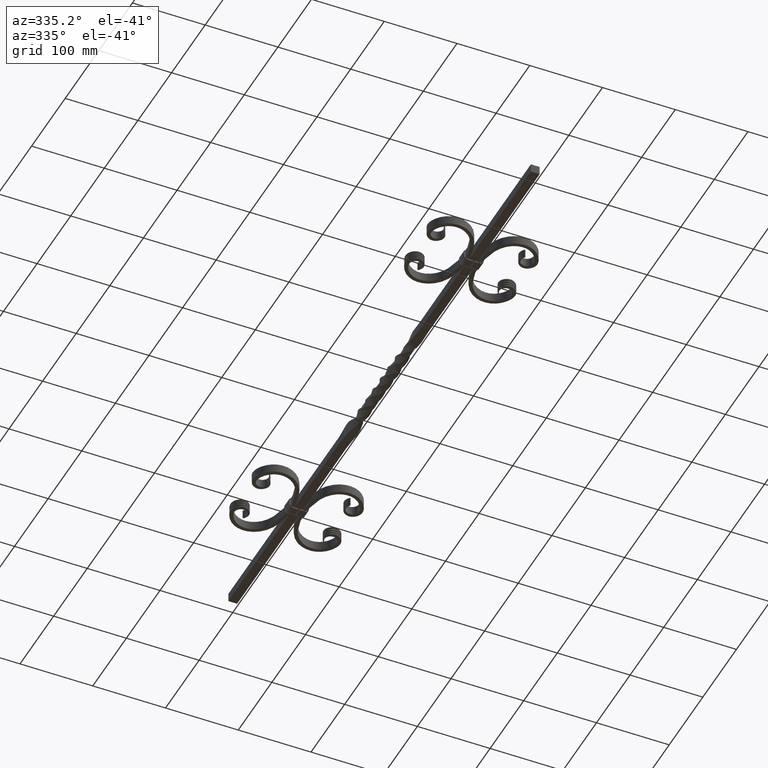
[diagram: clean part render]
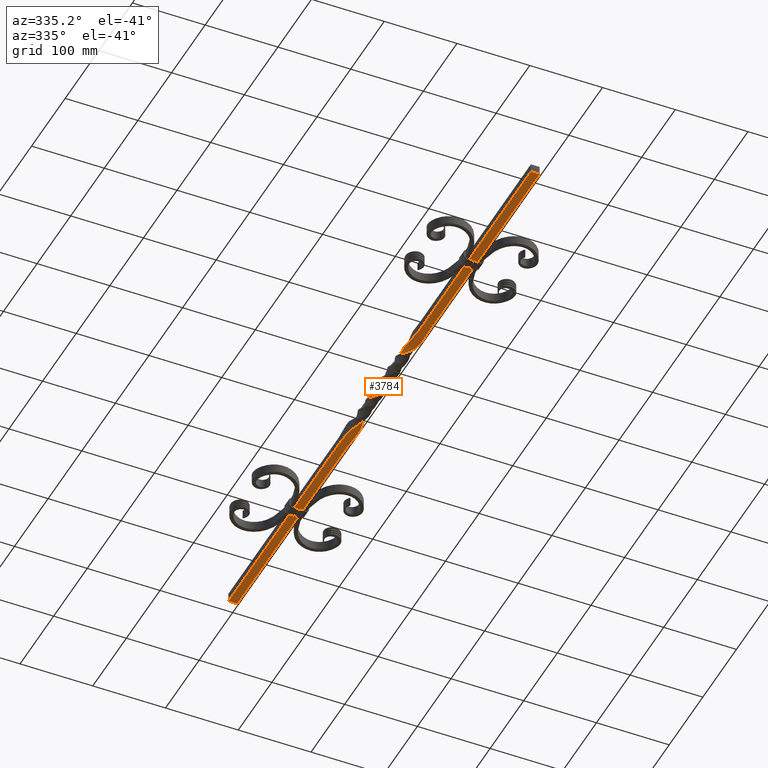
[diagram: same view with one face highlighted and labeled with its STEP entity id]
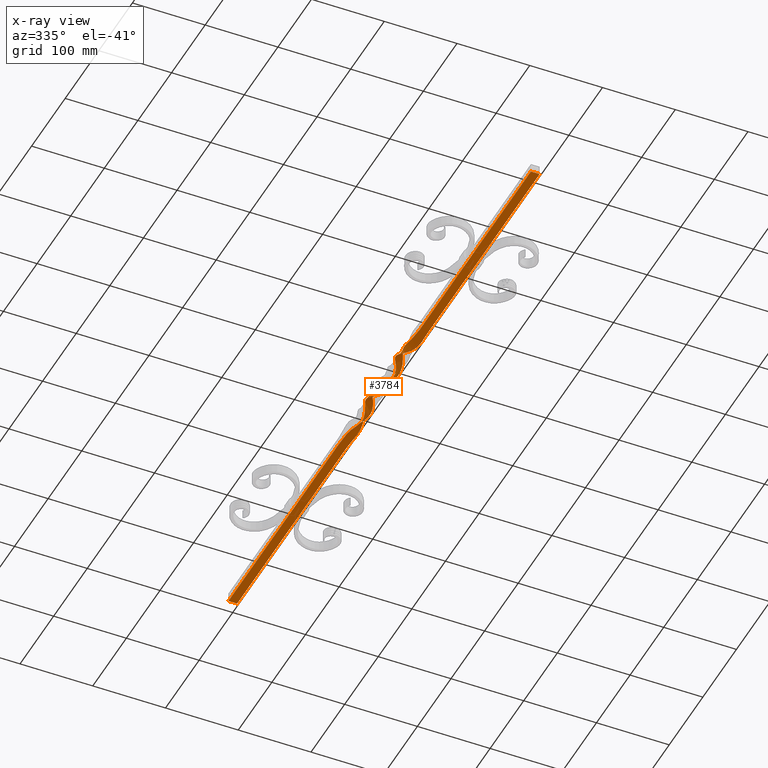
[diagram: x-ray of the same camera — body ghosted, the highlighted face saturated]
A machine part, auxiliary view. The second image highlights one B-rep face of the part: STEP entity #3784.
The next image is the same camera in x-ray: the body ghosted, the highlighted face saturated — about 0% of this face is hidden behind the body in this view.
In plain terms, the highlighted face is a freeform B-spline surface patch.
Its self-contained STEP definition (entity closure, byte-faithful):
#216 = CARTESIAN_POINT ( 'NONE',  ( 6.003784774164357074, 253.1271834178583333, -6.020221256834648038 ) ) ;
#286 = EDGE_CURVE ( 'NONE', #3244, #4060, #6926, .T. ) ;
#438 = DIRECTION ( 'NONE',  ( 1.000000000000000000, -8.326672684688670267E-14, -2.168404344971007882E-16 ) ) ;
#593 = CARTESIAN_POINT ( 'NONE',  ( 6.020221256834648926, 646.8728165821406719, -6.003784774164356186 ) ) ;
#600 = CARTESIAN_POINT ( 'NONE',  ( -6.000000218979613109, 65.62500002364450324, -6.000000040986010141 ) ) ;
#675 = CARTESIAN_POINT ( 'NONE',  ( -6.003784774164359739, 646.8728165821406719, -6.020221256834650703 ) ) ;
#771 = B_SPLINE_SURFACE_WITH_KNOTS ( 'NONE', 3, 3, ( 
 ( #12953, #4282, #16314, #16464, #5994, #14457, #6147, #4358, #11214, #16171, #19660, #11059, #2463, #7808, #19733, #7873, #19888, #18072, #9544, #2695, #19964, #5848, #17914 ),
 ( #1324, #8019, #20331, #14984, #13107, #21746, #4656, #4585, #11669, #20263, #18442, #9850, #1173, #8162, #18369, #16614, #2917, #8098, #18289, #10005, #2844, #16693, #9923 ),
 ( #11598, #22055, #13330, #20182, #2770, #20035, #21980, #11445, #1245, #9773, #13261, #13402, #3064, #11521, #14837, #15126, #9695, #4505, #16540, #6367, #14913, #1018, #21825 ),
 ( #21898, #6225, #7950, #1096, #13182, #2999, #6291, #4795, #15051, #20111, #4725, #16768, #6440, #8239, #18518, #16841, #6513, #18597, #17210, #13477, #8387, #10357, #20551 ) ),
 .UNSPECIFIED., .F., .F., .F.,
 ( 4, 4 ),
 ( 4, 1, 1, 1, 1, 1, 1, 1, 1, 1, 1, 1, 1, 1, 1, 1, 1, 1, 1, 1, 4 ),
 ( 0.000000000000000000, 1.000000000000000000 ),
 ( 0.000000000000000000, 0.2150539006143588061, 0.2457758864164100443, 0.2764978722184612825, 0.3072198580205126039, 0.3379418438225638699, 0.3687168302277790133, 0.4004128416727371076, 0.4330298781574383749, 0.4665149390787190486, 0.4999999999999996114, 0.5334850609212802297, 0.5669701218425607925, 0.5995871583272621708, 0.6312831697722204316, 0.6620581561774356860, 0.6927801419794871185, 0.7235021277815384400, 0.7542241135835897614, 0.7849460993856408608, 1.000000000000000000 ),
 .UNSPECIFIED. ) ;
#904 = CARTESIAN_POINT ( 'NONE',  ( 16.02030561610881776, 506.1977098420063044, -0.9457429766344983557 ) ) ;
#1018 = CARTESIAN_POINT ( 'NONE',  ( -1.999999954330808905, 834.3749999763623464, -6.000000159648402054 ) ) ;
#1096 = CARTESIAN_POINT ( 'NONE',  ( -5.994581729899902456, 224.9994149548763005, -5.998985872695348220 ) ) ;
#1173 = CARTESIAN_POINT ( 'NONE',  ( -11.92570182127426826, 478.0767954600217990, 0.8538160824198446353 ) ) ;
#1245 = CARTESIAN_POINT ( 'NONE',  ( -4.529577538281730043, 367.2982682768879386, -7.917712261078325930 ) ) ;
#1324 = CARTESIAN_POINT ( 'NONE',  ( 1.999999999999998224, 0.000000000000000000, -6.000000000000003553 ) ) ;
#1613 = FACE_OUTER_BOUND ( 'NONE', #16577, .T. ) ;
#1817 = CARTESIAN_POINT ( 'NONE',  ( 0.9457429766345005762, 506.1977098420063044, 16.02030561610880710 ) ) ;
#1940 = EDGE_CURVE ( 'NONE', #4060, #19491, #8209, .T. ) ;
#2343 = CARTESIAN_POINT ( 'NONE',  ( -14.82313183498101061, 478.0767954600213443, -6.130841793860736466 ) ) ;
#2350 = CARTESIAN_POINT ( 'NONE',  ( -6.000000000000000000, 0.000000000000000000, -6.000000000000000000 ) ) ;
#2396 = CARTESIAN_POINT ( 'NONE',  ( -3.469446951953614189E-15, 899.9999999999998863, -6.000000000000000000 ) ) ;
#2419 = CARTESIAN_POINT ( 'NONE',  ( 5.994581729899895350, 675.0005850451231026, -5.998985872695351773 ) ) ;
#2463 = CARTESIAN_POINT ( 'NONE',  ( -14.82313183498101061, 478.0767954600213443, -6.130841793860736466 ) ) ;
#2576 = CARTESIAN_POINT ( 'NONE',  ( -6.000000000000003553, 899.9999999999998863, -6.000000000000000000 ) ) ;
#2639 = CARTESIAN_POINT ( 'NONE',  ( -3.469446951953614189E-15, 0.000000000000000000, -6.000000000000000000 ) ) ;
#2659 = CARTESIAN_POINT ( 'NONE',  ( -6.281851131885397344, 309.4216067163823709, -6.052753540043469549 ) ) ;
#2695 = CARTESIAN_POINT ( 'NONE',  ( 5.994581729899895350, 675.0005850451231026, -5.998985872695351773 ) ) ;
#2770 = CARTESIAN_POINT ( 'NONE',  ( -2.012219246501647962, 253.1271834178585607, -6.009263601721122505 ) ) ;
#2844 = CARTESIAN_POINT ( 'NONE',  ( 2.009180187340980694, 759.3733596218493176, -6.006959643480523248 ) ) ;
#2917 = CARTESIAN_POINT ( 'NONE',  ( 2.170316241242496780, 590.5783932836166059, -6.129119403990755721 ) ) ;
#2999 = CARTESIAN_POINT ( 'NONE',  ( -5.924533242761513385, 281.2418513736877230, -5.985875030647205719 ) ) ;
#3064 = CARTESIAN_POINT ( 'NONE',  ( -9.028271807567502805, 478.0767954600212306, 7.838473958700433286 ) ) ;
#3119 = B_SPLINE_CURVE_WITH_KNOTS ( 'NONE', 3,
 ( #2576, #12989, #7692, #12838, #675, #6108, #7842, #9196, #14418, #904, #14644, #9429, #19767, #4170, #11093, #9272, #2659, #21482, #5884, #17949, #4392, #600, #2350 ),
 .UNSPECIFIED., .F., .F.,
 ( 4, 1, 1, 1, 1, 1, 1, 1, 1, 1, 1, 1, 1, 1, 1, 1, 1, 1, 1, 1, 4 ),
 ( 0.000000000000000000, 0.2150539006143591392, 0.2457758864164102386, 0.2764978722184615600, 0.3072198580205128815, 0.3379418438225643140, 0.3687168302277795684, 0.4004128416727378292, 0.4330298781574392075, 0.4665149390787197703, 0.5000000000000004441, 0.5334850609212808958, 0.5669701218425615696, 0.5995871583272629479, 0.6312831697722209867, 0.6620581561774361301, 0.6927801419794874516, 0.7235021277815387730, 0.7542241135835899835, 0.7849460993856411939, 1.000000000000000000 ),
 .UNSPECIFIED. ) ;
#3244 = VERTEX_POINT ( 'NONE', #20573 ) ;
#3784 = ADVANCED_FACE ( 'NONE', ( #1613 ), #771, .T. ) ;
#3943 = ORIENTED_EDGE ( 'NONE', *, *, #1940, .T. ) ;
#4060 = VERTEX_POINT ( 'NONE', #5525 ) ;
#4170 = CARTESIAN_POINT ( 'NONE',  ( -0.9457429766359252143, 393.8022901579925588, 16.02030561610886039 ) ) ;
#4282 = CARTESIAN_POINT ( 'NONE',  ( 6.000000040985989713, 65.62500002364450324, -6.000000218979623767 ) ) ;
#4358 = CARTESIAN_POINT ( 'NONE',  ( 5.800247441439061014, 337.7143404507785363, -4.932763854690909611 ) ) ;
#4392 = CARTESIAN_POINT ( 'NONE',  ( -6.015192010897480124, 140.6266403781508245, -6.002843459772042145 ) ) ;
#4505 = CARTESIAN_POINT ( 'NONE',  ( -2.015738939510986150, 618.7581486263111401, -5.944980505390067727 ) ) ;
#4585 = CARTESIAN_POINT ( 'NONE',  ( 2.222577009395736880, 337.7143404507792184, -5.221925050273629410 ) ) ;
#4656 = CARTESIAN_POINT ( 'NONE',  ( 1.941218649400515694, 309.4216067163825983, -6.205485267938089855 ) ) ;
#4725 = CARTESIAN_POINT ( 'NONE',  ( 14.82313183498177622, 421.9232045399774051, -6.130841793859734601 ) ) ;
#4795 = CARTESIAN_POINT ( 'NONE',  ( -4.932763854690913163, 337.7143404507785363, -5.800247441439064566 ) ) ;
#5347 = CARTESIAN_POINT ( 'NONE',  ( 6.000000218979615774, 834.3749999763547294, -6.000000040986001260 ) ) ;
#5525 = CARTESIAN_POINT ( 'NONE',  ( 5.999999999999994671, 899.9999999999996589, -6.000000000000000000 ) ) ;
#5848 = CARTESIAN_POINT ( 'NONE',  ( 6.000000218979615774, 834.3749999763547294, -6.000000040986001260 ) ) ;
#5884 = CARTESIAN_POINT ( 'NONE',  ( -6.020221256834651591, 253.1271834178583333, -6.003784774164361515 ) ) ;
#5994 = CARTESIAN_POINT ( 'NONE',  ( 6.003784774164357074, 253.1271834178583333, -6.020221256834648038 ) ) ;
#6108 = CARTESIAN_POINT ( 'NONE',  ( -5.985875030647226147, 618.7581486263111401, -5.924533242761492069 ) ) ;
#6147 = CARTESIAN_POINT ( 'NONE',  ( 6.052753540043465996, 309.4216067163823709, -6.281851131885392014 ) ) ;
#6225 = CARTESIAN_POINT ( 'NONE',  ( -6.000000218979613109, 65.62500002364450324, -6.000000040986010141 ) ) ;
#6291 = CARTESIAN_POINT ( 'NONE',  ( -6.281851131885397344, 309.4216067163823709, -6.052753540043469549 ) ) ;
#6367 = CARTESIAN_POINT ( 'NONE',  ( -2.001130005163605841, 675.0005850451231026, -5.996049777498383193 ) ) ;
#6440 = CARTESIAN_POINT ( 'NONE',  ( -6.130841793860742683, 478.0767954600213443, 14.82313183498101772 ) ) ;
#6513 = CARTESIAN_POINT ( 'NONE',  ( -6.052753540043404712, 590.5783932836168333, -6.281851131885449746 ) ) ;
#6926 = LINE ( 'NONE', #2396, #8004 ) ;
#7420 = LINE ( 'NONE', #2639, #16850 ) ;
#7692 = CARTESIAN_POINT ( 'NONE',  ( -6.002843459772038592, 759.3733596218474986, -6.015192010897478347 ) ) ;
#7808 = CARTESIAN_POINT ( 'NONE',  ( 0.9457429766345005762, 506.1977098420063044, 16.02030561610880710 ) ) ;
#7842 = CARTESIAN_POINT ( 'NONE',  ( -6.052753540043404712, 590.5783932836168333, -6.281851131885449746 ) ) ;
#7873 = CARTESIAN_POINT ( 'NONE',  ( 4.932763854690706218, 562.2856595492200995, -5.800247441439327467 ) ) ;
#7950 = CARTESIAN_POINT ( 'NONE',  ( -6.015192010897480124, 140.6266403781508245, -6.002843459772042145 ) ) ;
#8004 = VECTOR ( 'NONE', #438, 1000.000000000000000 ) ;
#8019 = CARTESIAN_POINT ( 'NONE',  ( 1.999999954330783813, 65.62500002364470220, -6.000000159648406495 ) ) ;
#8098 = CARTESIAN_POINT ( 'NONE',  ( 1.954397151625252294, 618.7581486263111401, -5.965427768018652266 ) ) ;
#8162 = CARTESIAN_POINT ( 'NONE',  ( 5.970597189792604453, 506.1977098420067591, 10.36495608519438427 ) ) ;
#8209 = B_SPLINE_CURVE_WITH_KNOTS ( 'NONE', 3,
 ( #20803, #5347, #19620, #2419, #593, #12684, #21326, #16193, #12222, #1817, #2343, #15744, #19162, #10551, #9188, #12296, #8803, #12754, #216, #19689, #14486, #17866, #10476 ),
 .UNSPECIFIED., .F., .F.,
 ( 4, 1, 1, 1, 1, 1, 1, 1, 1, 1, 1, 1, 1, 1, 1, 1, 1, 1, 1, 1, 4 ),
 ( 0.000000000000000000, 0.2150539006143591392, 0.2457758864164102386, 0.2764978722184615600, 0.3072198580205128815, 0.3379418438225643140, 0.3687168302277795684, 0.4004128416727378292, 0.4330298781574392075, 0.4665149390787197703, 0.5000000000000004441, 0.5334850609212808958, 0.5669701218425615696, 0.5995871583272629479, 0.6312831697722209867, 0.6620581561774361301, 0.6927801419794874516, 0.7235021277815387730, 0.7542241135835899835, 0.7849460993856411939, 1.000000000000000000 ),
 .UNSPECIFIED. ) ;
#8239 = CARTESIAN_POINT ( 'NONE',  ( 16.02030561610881776, 506.1977098420063044, -0.9457429766344983557 ) ) ;
#8387 = CARTESIAN_POINT ( 'NONE',  ( -6.002843459772038592, 759.3733596218474986, -6.015192010897478347 ) ) ;
#8803 = CARTESIAN_POINT ( 'NONE',  ( 6.052753540043465996, 309.4216067163823709, -6.281851131885392014 ) ) ;
#9188 = CARTESIAN_POINT ( 'NONE',  ( 6.783508190324949005, 367.2982682768875975, -10.18612040258506468 ) ) ;
#9196 = CARTESIAN_POINT ( 'NONE',  ( -5.800247441439331908, 562.2856595492200995, -4.932763854690709771 ) ) ;
#9272 = CARTESIAN_POINT ( 'NONE',  ( -4.932763854690913163, 337.7143404507785363, -5.800247441439064566 ) ) ;
#9429 = CARTESIAN_POINT ( 'NONE',  ( -11.17307251028023884, 449.9999999999993747, -11.17307251028033832 ) ) ;
#9475 = EDGE_CURVE ( 'NONE', #18489, #19491, #7420, .T. ) ;
#9544 = CARTESIAN_POINT ( 'NONE',  ( 6.020221256834648926, 646.8728165821406719, -6.003784774164356186 ) ) ;
#9695 = CARTESIAN_POINT ( 'NONE',  ( -1.941218649400456853, 590.5783932836168333, -6.205485267938097849 ) ) ;
#9773 = CARTESIAN_POINT ( 'NONE',  ( -5.970597189793567239, 393.8022901579927861, 10.36495608519394018 ) ) ;
#9850 = CARTESIAN_POINT ( 'NONE',  ( 3.724357503426815263, 449.9999999999993747, -11.17307251028027437 ) ) ;
#9923 = CARTESIAN_POINT ( 'NONE',  ( 1.999999999999998224, 899.9999999999998863, -6.000000000000003553 ) ) ;
#10005 = CARTESIAN_POINT ( 'NONE',  ( 1.996725862368146087, 675.0005850451235574, -5.997517825096868371 ) ) ;
#10357 = CARTESIAN_POINT ( 'NONE',  ( -6.000000040986008365, 834.3749999763547294, -6.000000218979621103 ) ) ;
#10476 = CARTESIAN_POINT ( 'NONE',  ( 5.999999999999994671, 0.000000000000000000, -6.000000000000000000 ) ) ;
#10551 = CARTESIAN_POINT ( 'NONE',  ( -16.02030561610885329, 393.8022901579925588, -0.9457429766359247703 ) ) ;
#11059 = CARTESIAN_POINT ( 'NONE',  ( 11.17307251028033122, 449.9999999999993747, -11.17307251028023529 ) ) ;
#11093 = CARTESIAN_POINT ( 'NONE',  ( -10.18612040258507179, 367.2982682768875975, -6.783508190324952558 ) ) ;
#11214 = CARTESIAN_POINT ( 'NONE',  ( 6.783508190324949005, 367.2982682768875975, -10.18612040258506468 ) ) ;
#11445 = CARTESIAN_POINT ( 'NONE',  ( -1.355093422647588808, 337.7143404507788773, -5.511086245856346544 ) ) ;
#11521 = CARTESIAN_POINT ( 'NONE',  ( 10.99545140295071377, 506.1977098420069865, 4.709606554279944568 ) ) ;
#11598 = CARTESIAN_POINT ( 'NONE',  ( -2.000000000000003553, 0.000000000000000000, -6.000000000000000000 ) ) ;
#11669 = CARTESIAN_POINT ( 'NONE',  ( 1.126965326021614811, 367.2982682768882796, -9.051916331831705520 ) ) ;
#12222 = CARTESIAN_POINT ( 'NONE',  ( 10.18612040258586582, 532.7017317231113793, -6.783508190323917830 ) ) ;
#12296 = CARTESIAN_POINT ( 'NONE',  ( 5.800247441439061014, 337.7143404507785363, -4.932763854690909611 ) ) ;
#12684 = CARTESIAN_POINT ( 'NONE',  ( 5.924533242761488516, 618.7581486263111401, -5.985875030647221706 ) ) ;
#12754 = CARTESIAN_POINT ( 'NONE',  ( 5.985875030647203054, 281.2418513736877230, -5.924533242761509833 ) ) ;
#12838 = CARTESIAN_POINT ( 'NONE',  ( -5.998985872695353549, 675.0005850451231026, -5.994581729899898015 ) ) ;
#12953 = CARTESIAN_POINT ( 'NONE',  ( 5.999999999999996447, 0.000000000000000000, -6.000000000000000000 ) ) ;
#12989 = CARTESIAN_POINT ( 'NONE',  ( -6.000000040986008365, 834.3749999763547294, -6.000000218979621103 ) ) ;
#13107 = CARTESIAN_POINT ( 'NONE',  ( 1.995782763831355666, 253.1271834178586744, -6.014742429277889713 ) ) ;
#13182 = CARTESIAN_POINT ( 'NONE',  ( -6.020221256834651591, 253.1271834178583333, -6.003784774164361515 ) ) ;
#13261 = CARTESIAN_POINT ( 'NONE',  ( 11.92570182127442635, 421.9232045399775188, 0.8538160824207632338 ) ) ;
#13330 = CARTESIAN_POINT ( 'NONE',  ( -2.009180187340973589, 140.6266403781515919, -6.006959643480519695 ) ) ;
#13402 = CARTESIAN_POINT ( 'NONE',  ( -3.724357503426716232, 449.9999999999998295, -11.17307251028030279 ) ) ;
#13477 = CARTESIAN_POINT ( 'NONE',  ( -5.998985872695353549, 675.0005850451231026, -5.994581729899898015 ) ) ;
#14418 = CARTESIAN_POINT ( 'NONE',  ( -6.783508190323921383, 532.7017317231113793, -10.18612040258587292 ) ) ;
#14457 = CARTESIAN_POINT ( 'NONE',  ( 5.985875030647203054, 281.2418513736877230, -5.924533242761509833 ) ) ;
#14486 = CARTESIAN_POINT ( 'NONE',  ( 6.002843459772042145, 140.6266403781508245, -6.015192010897480124 ) ) ;
#14492 = CARTESIAN_POINT ( 'NONE',  ( 5.999999999999994671, 0.000000000000000000, -6.000000000000000000 ) ) ;
#14644 = CARTESIAN_POINT ( 'NONE',  ( -6.130841793860742683, 478.0767954600213443, 14.82313183498101772 ) ) ;
#14837 = CARTESIAN_POINT ( 'NONE',  ( -1.126965326020658020, 532.7017317231113793, -9.051916331831897367 ) ) ;
#14913 = CARTESIAN_POINT ( 'NONE',  ( -1.996831636215531836, 759.3733596218484081, -6.011075827188993692 ) ) ;
#14984 = CARTESIAN_POINT ( 'NONE',  ( 2.001130005163599179, 224.9994149548763005, -5.996049777498385858 ) ) ;
#15051 = CARTESIAN_POINT ( 'NONE',  ( -10.18612040258507179, 367.2982682768875975, -6.783508190324952558 ) ) ;
#15126 = CARTESIAN_POINT ( 'NONE',  ( -2.222577009395986458, 562.2856595492196448, -5.221925050273578783 ) ) ;
#15744 = CARTESIAN_POINT ( 'NONE',  ( 11.17307251028033122, 449.9999999999993747, -11.17307251028023529 ) ) ;
#16171 = CARTESIAN_POINT ( 'NONE',  ( -16.02030561610885329, 393.8022901579925588, -0.9457429766359247703 ) ) ;
#16193 = CARTESIAN_POINT ( 'NONE',  ( 4.932763854690706218, 562.2856595492200995, -5.800247441439327467 ) ) ;
#16314 = CARTESIAN_POINT ( 'NONE',  ( 6.002843459772042145, 140.6266403781508245, -6.015192010897480124 ) ) ;
#16464 = CARTESIAN_POINT ( 'NONE',  ( 5.998985872695344668, 224.9994149548763005, -5.994581729899898903 ) ) ;
#16540 = CARTESIAN_POINT ( 'NONE',  ( -1.995782763831356332, 646.8728165821411267, -6.014742429277889713 ) ) ;
#16577 = EDGE_LOOP ( 'NONE', ( #21920, #20969, #19236, #3943 ) ) ;
#16614 = CARTESIAN_POINT ( 'NONE',  ( 1.355093422647362322, 562.2856595492204406, -5.511086245856458454 ) ) ;
#16693 = CARTESIAN_POINT ( 'NONE',  ( 2.000000132324415425, 834.3749999763700771, -6.000000100317193663 ) ) ;
#16768 = CARTESIAN_POINT ( 'NONE',  ( -11.17307251028023884, 449.9999999999993747, -11.17307251028033832 ) ) ;
#16841 = CARTESIAN_POINT ( 'NONE',  ( -5.800247441439331908, 562.2856595492200995, -4.932763854690709771 ) ) ;
#16850 = VECTOR ( 'NONE', #21691, 1000.000000000000000 ) ;
#17210 = CARTESIAN_POINT ( 'NONE',  ( -6.003784774164359739, 646.8728165821406719, -6.020221256834650703 ) ) ;
#17866 = CARTESIAN_POINT ( 'NONE',  ( 6.000000040985989713, 65.62500002364450324, -6.000000218979623767 ) ) ;
#17914 = CARTESIAN_POINT ( 'NONE',  ( 5.999999999999996447, 899.9999999999994316, -6.000000000000000000 ) ) ;
#17949 = CARTESIAN_POINT ( 'NONE',  ( -5.994581729899902456, 224.9994149548763005, -5.998985872695348220 ) ) ;
#18072 = CARTESIAN_POINT ( 'NONE',  ( 5.924533242761488516, 618.7581486263111401, -5.985875030647221706 ) ) ;
#18289 = CARTESIAN_POINT ( 'NONE',  ( 2.012219246501647074, 646.8728165821418088, -6.009263601721122505 ) ) ;
#18369 = CARTESIAN_POINT ( 'NONE',  ( 4.529577538282612892, 532.7017317231118341, -7.917712261077909375 ) ) ;
#18442 = CARTESIAN_POINT ( 'NONE',  ( 9.028271807567081808, 421.9232045399782578, 7.838473958701277056 ) ) ;
#18489 = VERTEX_POINT ( 'NONE', #21615 ) ;
#18518 = CARTESIAN_POINT ( 'NONE',  ( -6.783508190323921383, 532.7017317231113793, -10.18612040258587292 ) ) ;
#18597 = CARTESIAN_POINT ( 'NONE',  ( -5.985875030647226147, 618.7581486263111401, -5.924533242761492069 ) ) ;
#19162 = CARTESIAN_POINT ( 'NONE',  ( 6.130841793859734601, 421.9232045399774051, 14.82313183498176734 ) ) ;
#19236 = ORIENTED_EDGE ( 'NONE', *, *, #286, .T. ) ;
#19491 = VERTEX_POINT ( 'NONE', #14492 ) ;
#19554 = EDGE_CURVE ( 'NONE', #3244, #18489, #3119, .T. ) ;
#19620 = CARTESIAN_POINT ( 'NONE',  ( 6.015192010897473018, 759.3733596218474986, -6.002843459772032375 ) ) ;
#19660 = CARTESIAN_POINT ( 'NONE',  ( 6.130841793859734601, 421.9232045399774051, 14.82313183498176734 ) ) ;
#19689 = CARTESIAN_POINT ( 'NONE',  ( 5.998985872695344668, 224.9994149548763005, -5.994581729899898903 ) ) ;
#19733 = CARTESIAN_POINT ( 'NONE',  ( 10.18612040258586582, 532.7017317231113793, -6.783508190323917830 ) ) ;
#19767 = CARTESIAN_POINT ( 'NONE',  ( 14.82313183498177622, 421.9232045399774051, -6.130841793859734601 ) ) ;
#19888 = CARTESIAN_POINT ( 'NONE',  ( 6.281851131885445305, 590.5783932836168333, -6.052753540043403824 ) ) ;
#19964 = CARTESIAN_POINT ( 'NONE',  ( 6.015192010897473018, 759.3733596218474986, -6.002843459772032375 ) ) ;
#20035 = CARTESIAN_POINT ( 'NONE',  ( -1.954397151625274942, 281.2418513736877230, -5.965427768018641608 ) ) ;
#20111 = CARTESIAN_POINT ( 'NONE',  ( -0.9457429766359252143, 393.8022901579925588, 16.02030561610886039 ) ) ;
#20182 = CARTESIAN_POINT ( 'NONE',  ( -1.996725862368154747, 224.9994149548761868, -5.997517825096866595 ) ) ;
#20263 = CARTESIAN_POINT ( 'NONE',  ( -10.99545140295122003, 393.8022901579921040, 4.709606554279009316 ) ) ;
#20331 = CARTESIAN_POINT ( 'NONE',  ( 1.996831636215524730, 140.6266403781508245, -6.011075827188999021 ) ) ;
#20551 = CARTESIAN_POINT ( 'NONE',  ( -6.000000000000003553, 899.9999999999994316, -6.000000000000000000 ) ) ;
#20573 = CARTESIAN_POINT ( 'NONE',  ( -6.000000000000003553, 899.9999999999998863, -6.000000000000000000 ) ) ;
#20803 = CARTESIAN_POINT ( 'NONE',  ( 5.999999999999994671, 899.9999999999996589, -6.000000000000000000 ) ) ;
#20969 = ORIENTED_EDGE ( 'NONE', *, *, #19554, .F. ) ;
#21326 = CARTESIAN_POINT ( 'NONE',  ( 6.281851131885445305, 590.5783932836168333, -6.052753540043403824 ) ) ;
#21482 = CARTESIAN_POINT ( 'NONE',  ( -5.924533242761513385, 281.2418513736877230, -5.985875030647205719 ) ) ;
#21615 = CARTESIAN_POINT ( 'NONE',  ( -6.000000000000000000, 0.000000000000000000, -6.000000000000000000 ) ) ;
#21691 = DIRECTION ( 'NONE',  ( 1.000000000000000000, 0.000000000000000000, -2.168404344971007882E-16 ) ) ;
#21746 = CARTESIAN_POINT ( 'NONE',  ( 2.015738939510963501, 281.2418513736879504, -5.944980505390079273 ) ) ;
#21825 = CARTESIAN_POINT ( 'NONE',  ( -2.000000000000003553, 899.9999999999992042, -6.000000000000000000 ) ) ;
#21898 = CARTESIAN_POINT ( 'NONE',  ( -6.000000000000003553, 0.000000000000000000, -6.000000000000000000 ) ) ;
#21920 = ORIENTED_EDGE ( 'NONE', *, *, #9475, .F. ) ;
#21980 = CARTESIAN_POINT ( 'NONE',  ( -2.170316241242440380, 309.4216067163822572, -6.129119403990777037 ) ) ;
#22055 = CARTESIAN_POINT ( 'NONE',  ( -2.000000132324420754, 65.62500002364465956, -6.000000100317230078 ) ) ;